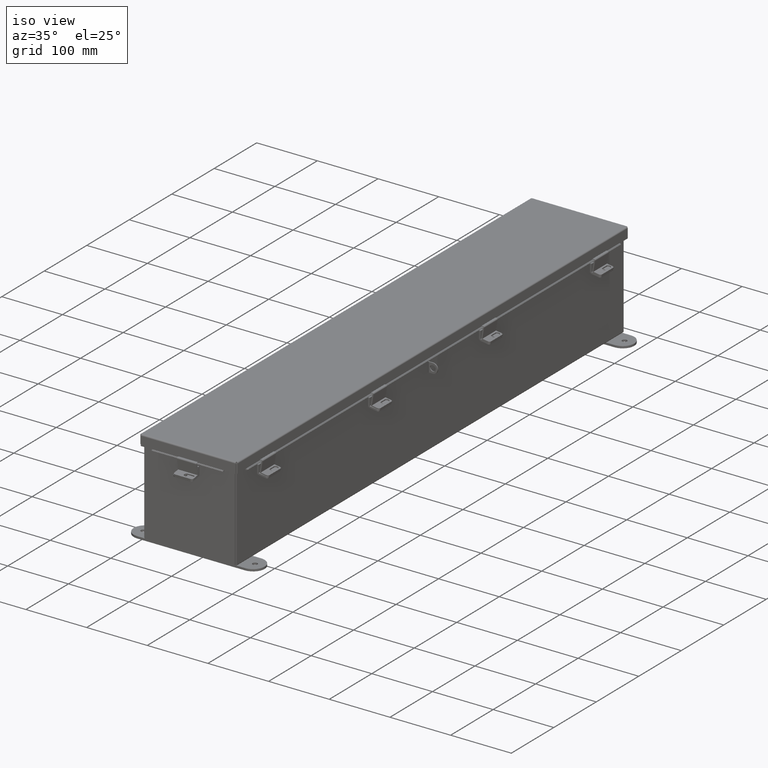
[diagram: clean part render]
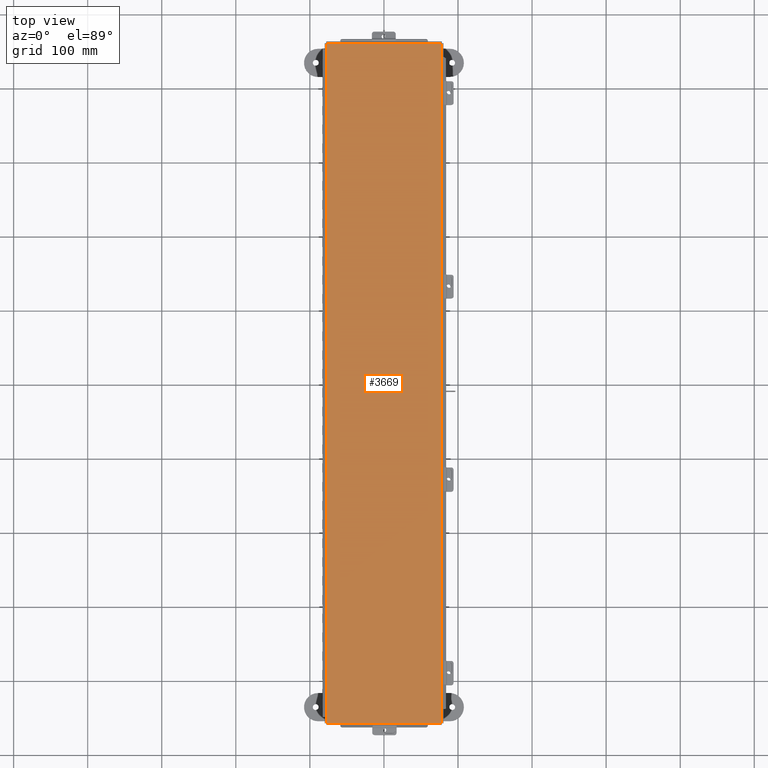
[diagram: tour spotlight — one face highlighted and labeled with its STEP entity id]
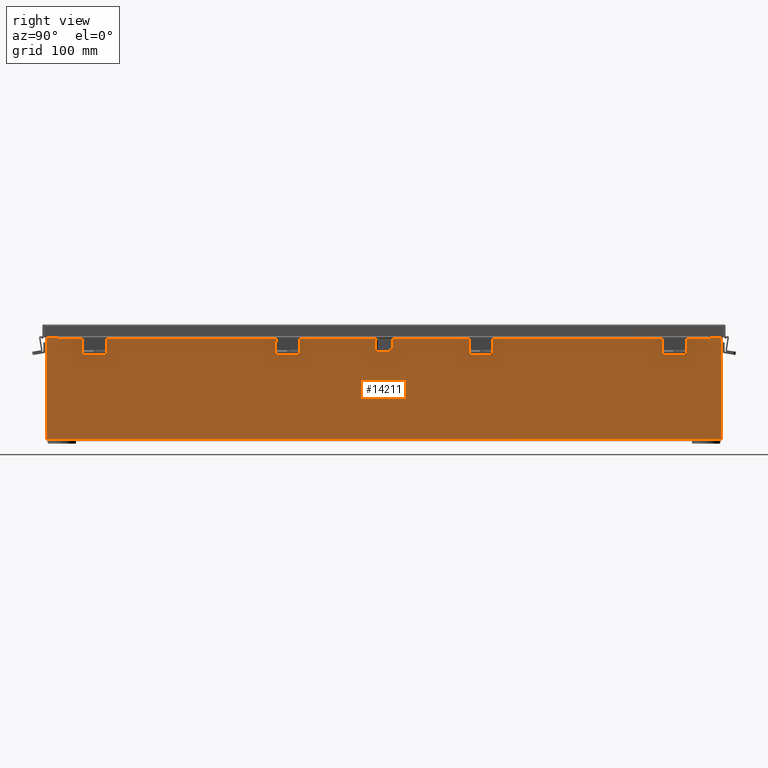
[diagram: tour spotlight — one face highlighted and labeled with its STEP entity id]
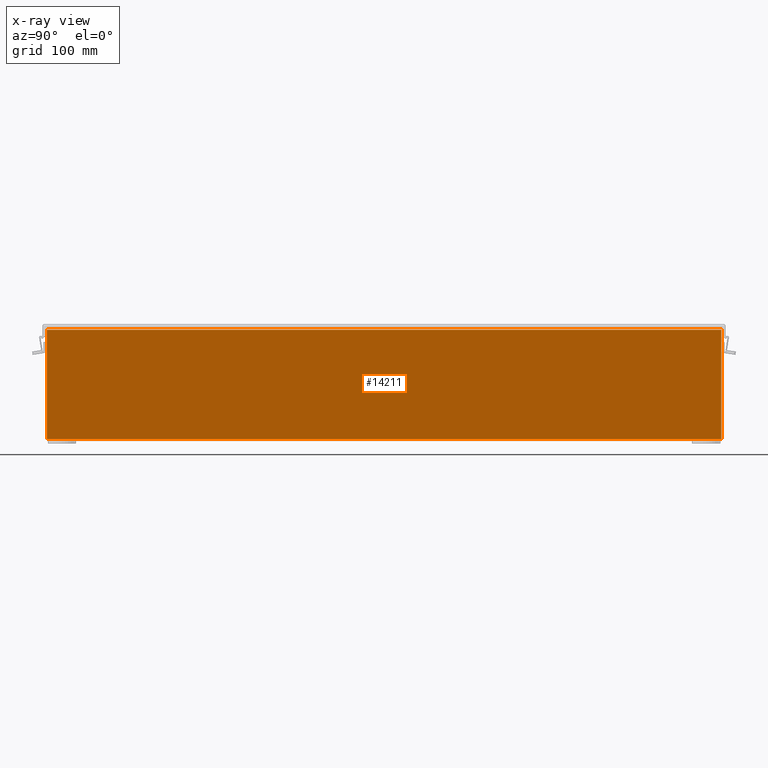
[diagram: x-ray of the same camera — body ghosted, this tour face saturated]
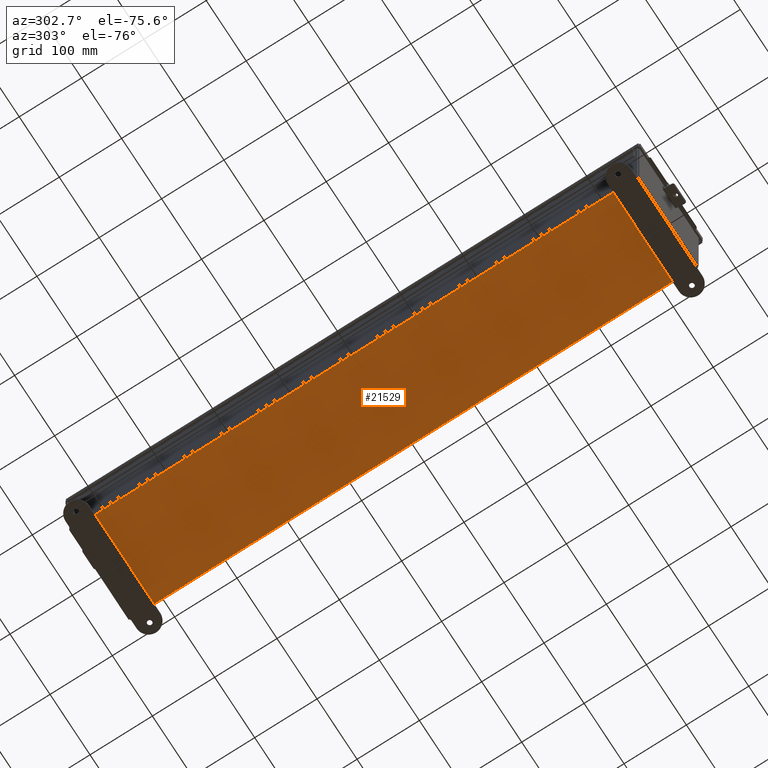
[diagram: tour spotlight — one face highlighted and labeled with its STEP entity id]
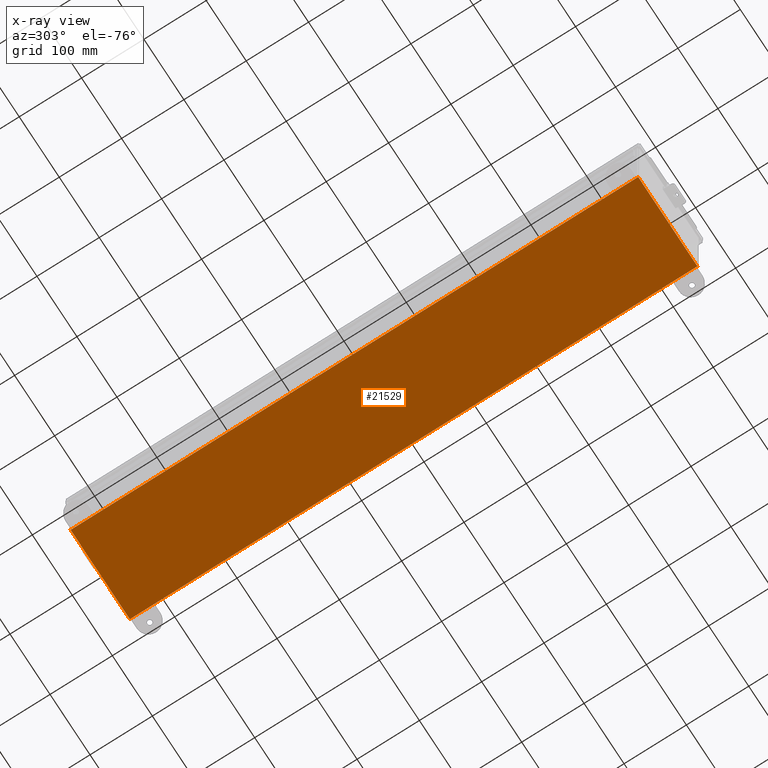
[diagram: x-ray of the same camera — body ghosted, this tour face saturated]
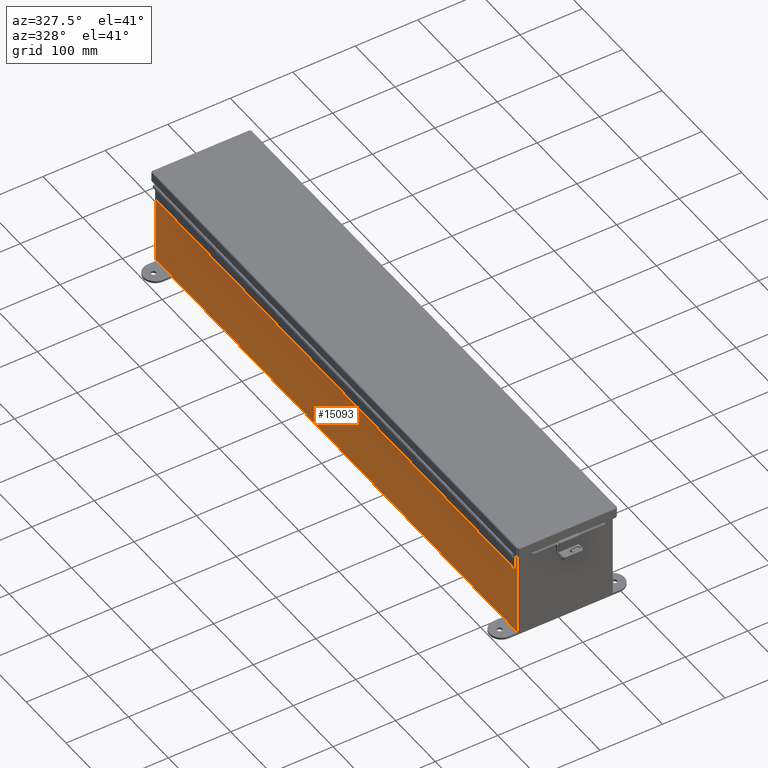
[diagram: tour spotlight — one face highlighted and labeled with its STEP entity id]
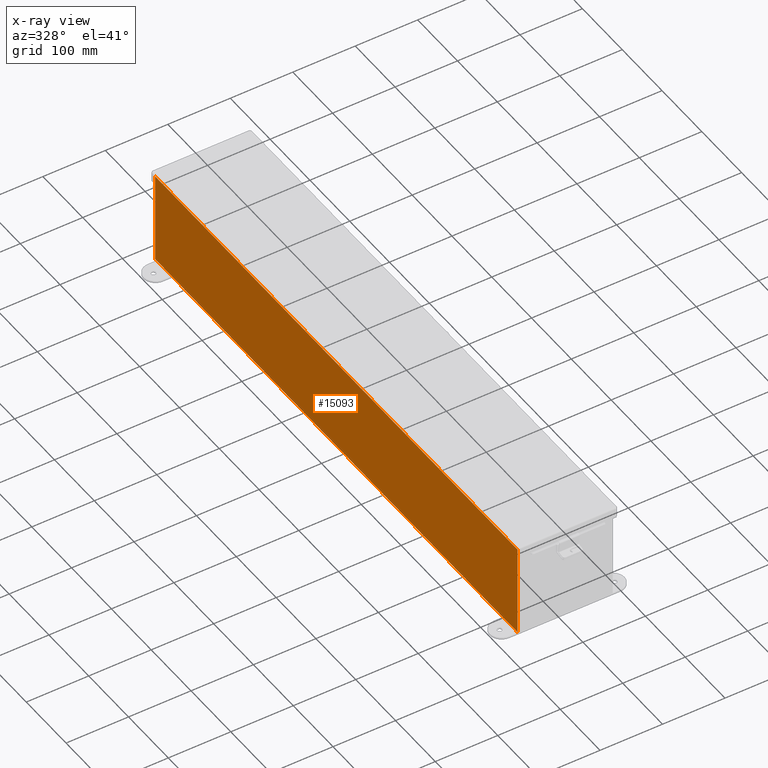
[diagram: x-ray of the same camera — body ghosted, this tour face saturated]
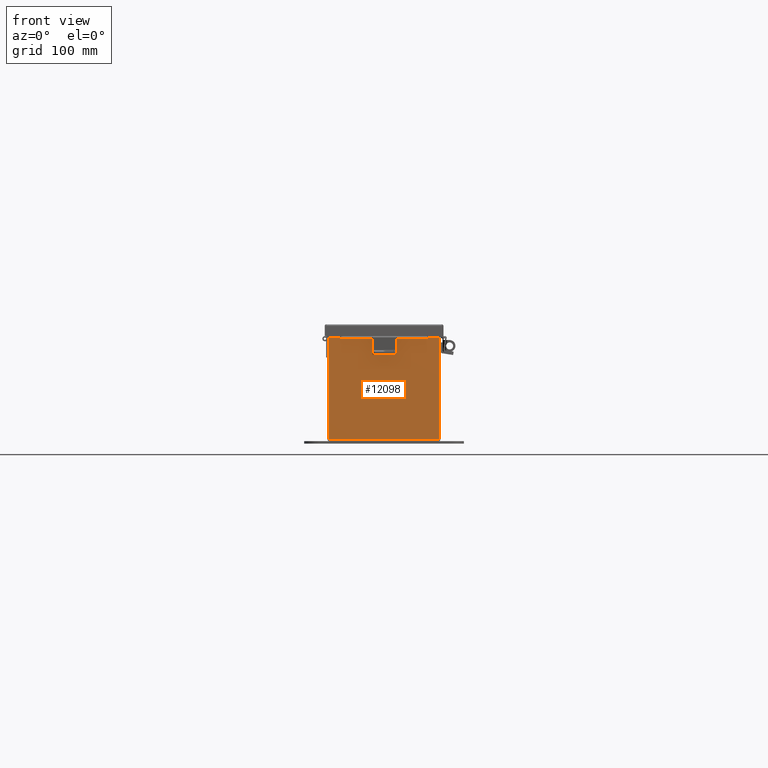
[diagram: tour spotlight — one face highlighted and labeled with its STEP entity id]
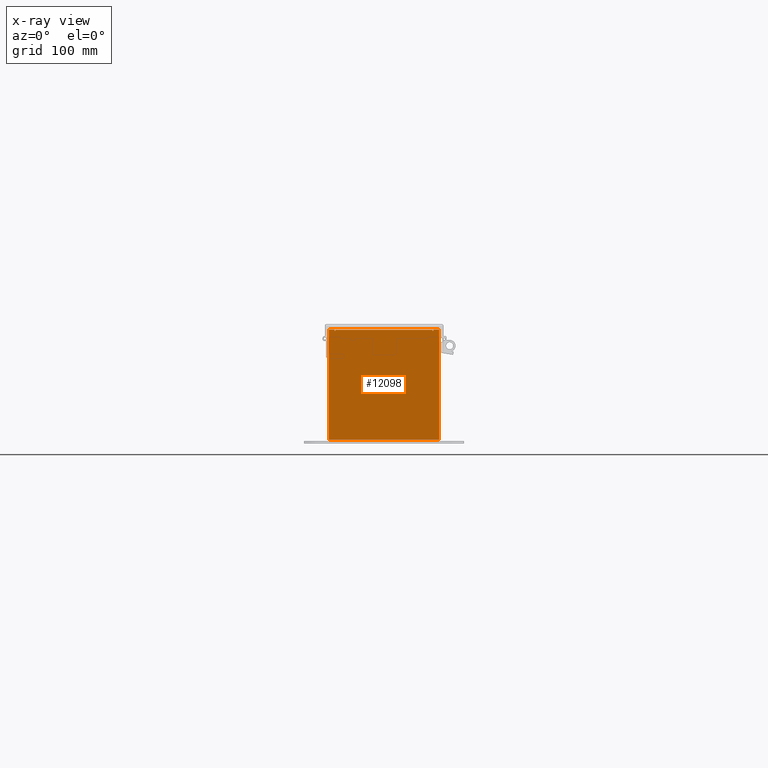
[diagram: x-ray of the same camera — body ghosted, this tour face saturated]
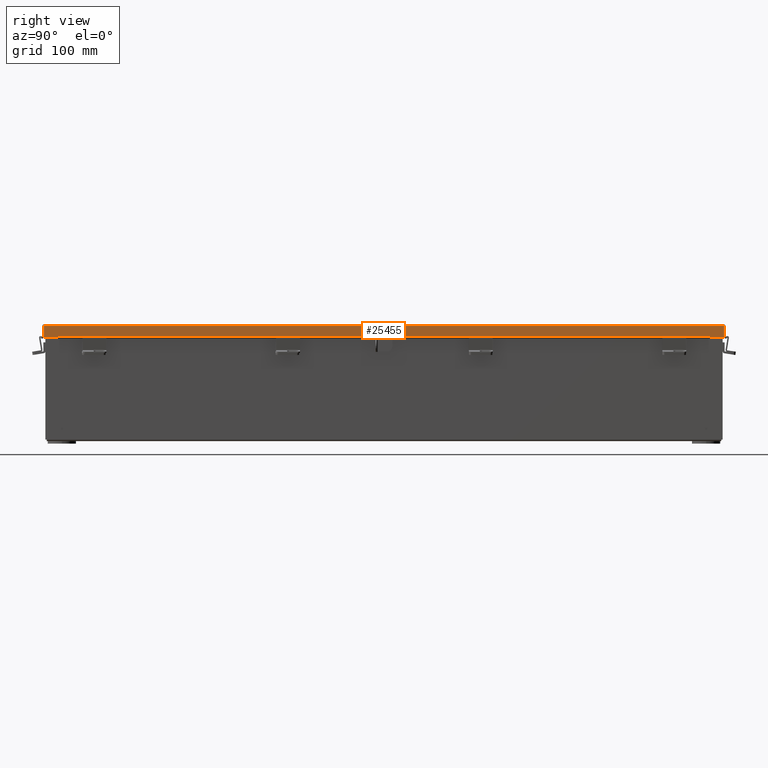
[diagram: tour spotlight — one face highlighted and labeled with its STEP entity id]
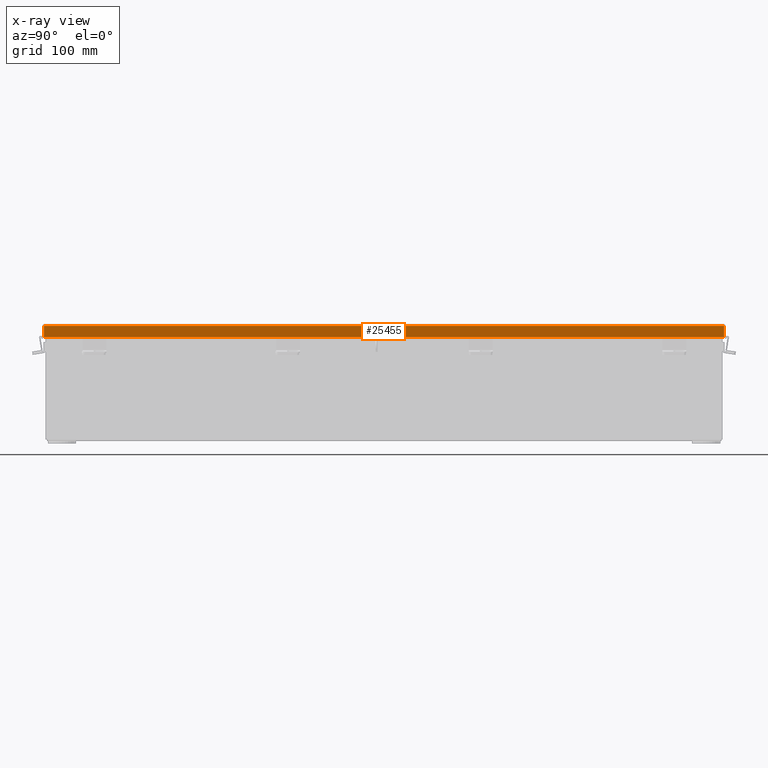
[diagram: x-ray of the same camera — body ghosted, this tour face saturated]
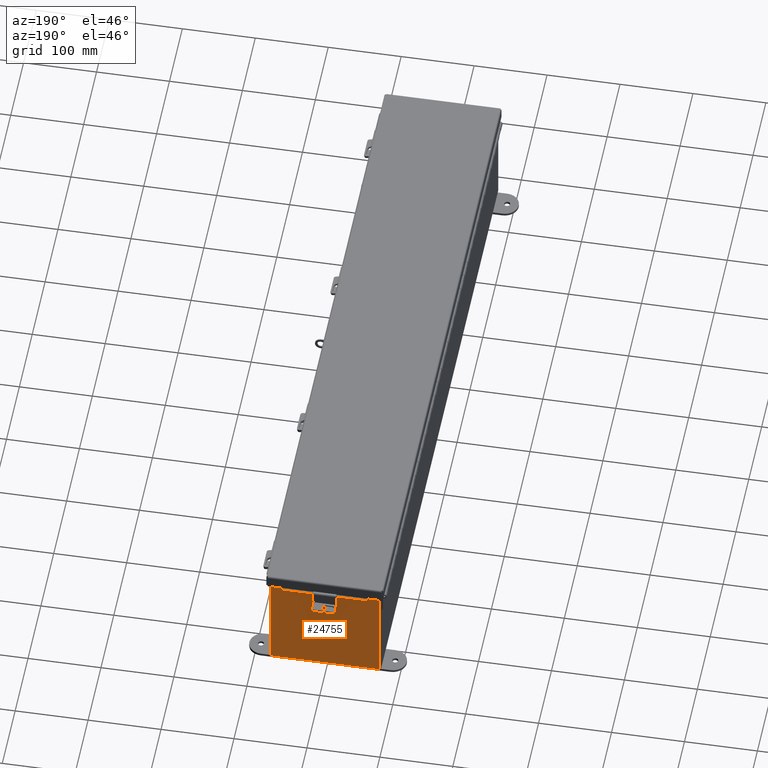
[diagram: tour spotlight — one face highlighted and labeled with its STEP entity id]
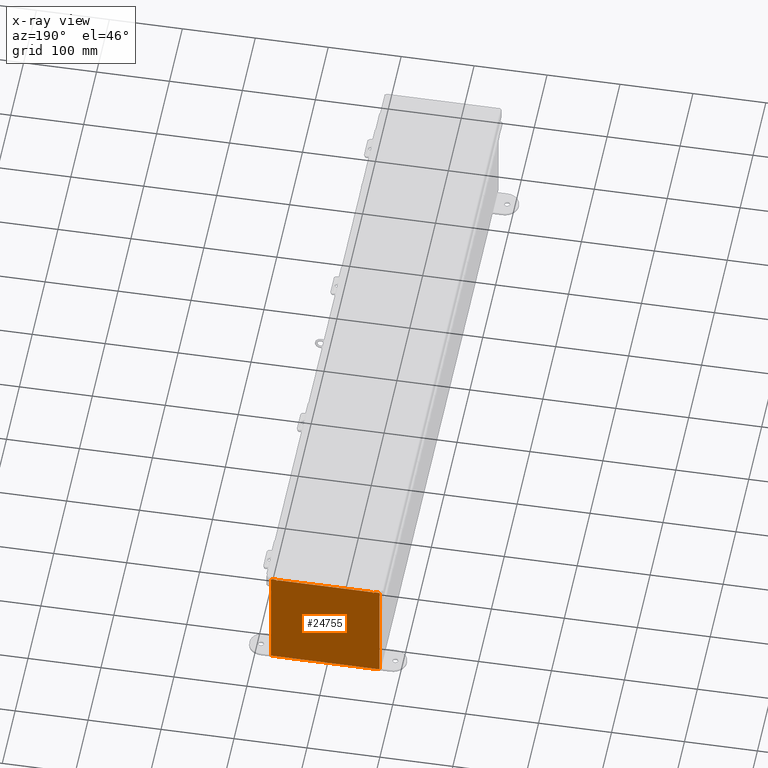
[diagram: x-ray of the same camera — body ghosted, this tour face saturated]
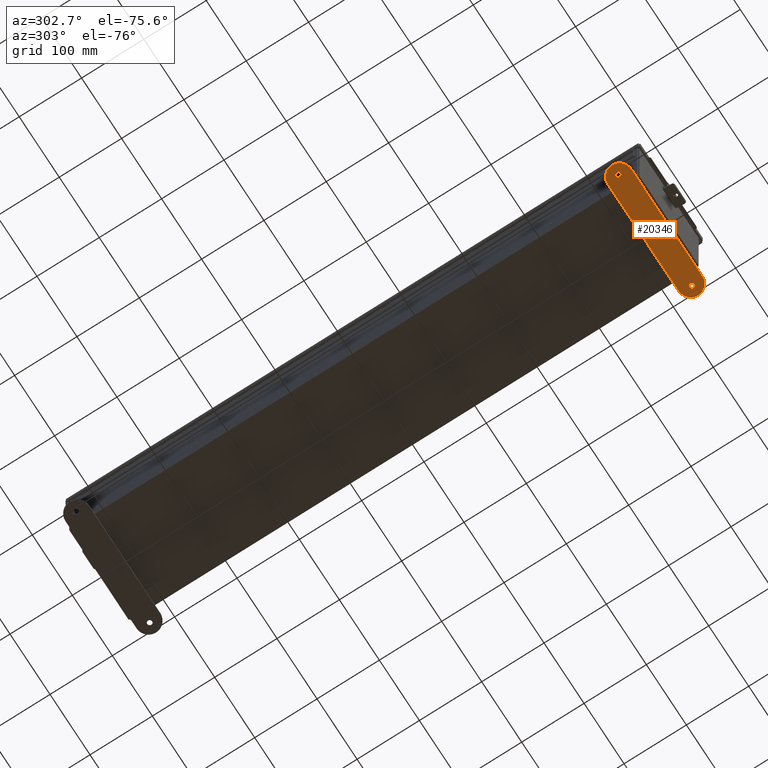
[diagram: tour spotlight — one face highlighted and labeled with its STEP entity id]
A machine part: a face-by-face anatomy tour. The part has 1160 B-rep faces; the first image is the clean iso view, then the 8 largest visible faces are spotlighted one at a time (largest first), each with its STEP entity span.

Face 1 — top view, entity #3669. In plain terms, the highlighted planar face has unit normal (0, 0, 1).
Definition (entity closure, byte-faithful):
#2366 = ORIENTED_EDGE ( 'NONE', *, *, #19344, .T. ) ;
#2527 = VECTOR ( 'NONE', #28118, 39.37007874015748100 ) ;
#3322 = LINE ( 'NONE', #20667, #8690 ) ;
#3569 = CARTESIAN_POINT ( 'NONE',  ( 3.074478932188144900, -18.06855000000000200, -0.07470000000000015500 ) ) ;
#3669 = ADVANCED_FACE ( 'NONE', ( #28480 ), #21963, .T. ) ;
#4637 = DIRECTION ( 'NONE',  ( 1.000000000000000000, -6.825164035528992100E-030, 1.577721810442017300E-030 ) ) ;
#4644 = VERTEX_POINT ( 'NONE', #5167 ) ;
#5167 = CARTESIAN_POINT ( 'NONE',  ( -3.068550000000009400, 18.06854999999999800, -0.07470000000000015500 ) ) ;
#5169 = AXIS2_PLACEMENT_3D ( 'NONE', #6036, #8349, #24388 ) ;
#6036 = CARTESIAN_POINT ( 'NONE',  ( 0.0000000000000000000, 0.0000000000000000000, -0.07470000000000015500 ) ) ;
#7136 = ORIENTED_EDGE ( 'NONE', *, *, #21408, .T. ) ;
#7326 = EDGE_LOOP ( 'NONE', ( #2366, #20398, #26008, #7136 ) ) ;
#8349 = DIRECTION ( 'NONE',  ( 1.577721810442017300E-030, -5.312485158597730400E-030, -1.000000000000000000 ) ) ;
#8690 = VECTOR ( 'NONE', #4637, 39.37007874015748100 ) ;
#10562 = EDGE_CURVE ( 'NONE', #24762, #18772, #21824, .T. ) ;
#12092 = VECTOR ( 'NONE', #16949, 39.37007874015748100 ) ;
#12957 = CARTESIAN_POINT ( 'NONE',  ( 3.068550000000010800, -18.06855000000000200, -0.07470000000000015500 ) ) ;
#14642 = CARTESIAN_POINT ( 'NONE',  ( 3.068550000000009900, 18.07447893218813600, -0.07470000000000015500 ) ) ;
#14709 = LINE ( 'NONE', #18902, #2527 ) ;
#16498 = CARTESIAN_POINT ( 'NONE',  ( 3.068550000000009900, 18.06855000000000200, -0.07470000000000015500 ) ) ;
#16949 = DIRECTION ( 'NONE',  ( 6.825164035529006100E-030, -1.000000000000000000, -5.324811110241829700E-030 ) ) ;
#18772 = VERTEX_POINT ( 'NONE', #27836 ) ;
#18902 = CARTESIAN_POINT ( 'NONE',  ( -3.068550000000009000, -18.07447893218813600, -0.07469999999999907300 ) ) ;
#18955 = LINE ( 'NONE', #14642, #12092 ) ;
#19344 = EDGE_CURVE ( 'NONE', #4644, #22799, #3322, .T. ) ;
#19603 = DIRECTION ( 'NONE',  ( -1.000000000000000000, 6.825164035528992100E-030, -1.577721810442017300E-030 ) ) ;
#20398 = ORIENTED_EDGE ( 'NONE', *, *, #26678, .T. ) ;
#20667 = CARTESIAN_POINT ( 'NONE',  ( -3.074478932188143600, 18.06854999999999800, -0.07470000000000015500 ) ) ;
#21408 = EDGE_CURVE ( 'NONE', #18772, #4644, #14709, .T. ) ;
#21824 = LINE ( 'NONE', #3569, #22547 ) ;
#21963 = PLANE ( 'NONE',  #5169 ) ;
#22547 = VECTOR ( 'NONE', #19603, 39.37007874015748100 ) ;
#22799 = VERTEX_POINT ( 'NONE', #16498 ) ;
#24388 = DIRECTION ( 'NONE',  ( -1.000000000000000000, 6.825164035528992100E-030, -1.577721810442017300E-030 ) ) ;
#24762 = VERTEX_POINT ( 'NONE', #12957 ) ;
#26008 = ORIENTED_EDGE ( 'NONE', *, *, #10562, .T. ) ;
#26678 = EDGE_CURVE ( 'NONE', #22799, #24762, #18955, .T. ) ;
#27836 = CARTESIAN_POINT ( 'NONE',  ( -3.068550000000009000, -18.06855000000000200, -0.07469999999999907300 ) ) ;
#28118 = DIRECTION ( 'NONE',  ( -6.825164035529006100E-030, 1.000000000000000000, 5.324811110241829700E-030 ) ) ;
#28480 = FACE_OUTER_BOUND ( 'NONE', #7326, .T. ) ;

Face 2 — right view, entity #14211. An x-ray twin of the same camera follows (body ghosted, this face saturated) — the face is partly hidden behind the body. In plain terms, the highlighted planar face has unit normal (-1, 0, 0).
Definition (entity closure, byte-faithful):
#254 = ORIENTED_EDGE ( 'NONE', *, *, #28491, .T. ) ;
#443 = VERTEX_POINT ( 'NONE', #20395 ) ;
#456 = CARTESIAN_POINT ( 'NONE',  ( 3.000000000000020900, 17.92530000000000000, 5.837599999999999200 ) ) ;
#1532 = DIRECTION ( 'NONE',  ( -1.000000000000000000, 0.0000000000000000000, 3.455316574900958600E-015 ) ) ;
#1927 = VERTEX_POINT ( 'NONE', #13043 ) ;
#1987 = EDGE_LOOP ( 'NONE', ( #254, #8208, #24508, #25262 ) ) ;
#2203 = AXIS2_PLACEMENT_3D ( 'NONE', #15259, #1532, #17583 ) ;
#2762 = DIRECTION ( 'NONE',  ( -0.0000000000000000000, -1.000000000000000000, -0.0000000000000000000 ) ) ;
#3665 = LINE ( 'NONE', #11642, #15115 ) ;
#6598 = VECTOR ( 'NONE', #2762, 39.37007874015748100 ) ;
#7197 = FACE_OUTER_BOUND ( 'NONE', #1987, .T. ) ;
#7586 = EDGE_CURVE ( 'NONE', #18035, #443, #15141, .T. ) ;
#8065 = EDGE_CURVE ( 'NONE', #18035, #27131, #3665, .T. ) ;
#8208 = ORIENTED_EDGE ( 'NONE', *, *, #21619, .T. ) ;
#8244 = VECTOR ( 'NONE', #17554, 39.37007874015748100 ) ;
#10633 = PLANE ( 'NONE',  #2203 ) ;
#11642 = CARTESIAN_POINT ( 'NONE',  ( 3.000000000000000900, 17.92530000000000000, -1.062859610035002400E-014 ) ) ;
#13043 = CARTESIAN_POINT ( 'NONE',  ( 3.000000000000020900, -17.92530000000000000, 5.837599999999999200 ) ) ;
#14211 = ADVANCED_FACE ( 'NONE', ( #7197 ), #10633, .F. ) ;
#14338 = LINE ( 'NONE', #28979, #8244 ) ;
#15115 = VECTOR ( 'NONE', #25410, 39.37007874015748100 ) ;
#15141 = LINE ( 'NONE', #16906, #19818 ) ;
#15259 = CARTESIAN_POINT ( 'NONE',  ( 3.000000000000000900, 0.0000000000000000000, -1.062859610035002400E-014 ) ) ;
#16638 = CARTESIAN_POINT ( 'NONE',  ( 3.000000000000020900, 17.92529999999998900, 5.837599999999999200 ) ) ;
#16906 = CARTESIAN_POINT ( 'NONE',  ( 3.000000000000000900, -17.92530000000000000, 0.01299999999999984300 ) ) ;
#17554 = DIRECTION ( 'NONE',  ( -3.455316574900958600E-015, 0.0000000000000000000, -1.000000000000000000 ) ) ;
#17583 = DIRECTION ( 'NONE',  ( 3.455316574900958600E-015, 0.0000000000000000000, 1.000000000000000000 ) ) ;
#17717 = CARTESIAN_POINT ( 'NONE',  ( 3.000000000000000900, 17.92530000000000000, 0.01300000000000202700 ) ) ;
#18035 = VERTEX_POINT ( 'NONE', #17717 ) ;
#18842 = LINE ( 'NONE', #456, #6598 ) ;
#19818 = VECTOR ( 'NONE', #26028, 39.37007874015748100 ) ;
#20395 = CARTESIAN_POINT ( 'NONE',  ( 3.000000000000000900, -17.92530000000000000, 0.01299999999999946700 ) ) ;
#21619 = EDGE_CURVE ( 'NONE', #1927, #443, #14338, .T. ) ;
#24508 = ORIENTED_EDGE ( 'NONE', *, *, #7586, .F. ) ;
#25262 = ORIENTED_EDGE ( 'NONE', *, *, #8065, .T. ) ;
#25410 = DIRECTION ( 'NONE',  ( 3.455316574900958600E-015, 0.0000000000000000000, 1.000000000000000000 ) ) ;
#26028 = DIRECTION ( 'NONE',  ( -2.106385868603161400E-031, -1.000000000000000000, -6.096072018129156600E-017 ) ) ;
#27131 = VERTEX_POINT ( 'NONE', #16638 ) ;
#28491 = EDGE_CURVE ( 'NONE', #27131, #1927, #18842, .T. ) ;
#28979 = CARTESIAN_POINT ( 'NONE',  ( 3.000000000000000900, -17.92530000000000000, -1.062859610035002400E-014 ) ) ;

Face 3 — auxiliary view, entity #21529. An x-ray twin of the same camera follows (body ghosted, this face saturated) — the face is partly hidden behind the body. In plain terms, the highlighted planar face has unit normal (0, 0, -1).
Definition (entity closure, byte-faithful):
#395 = LINE ( 'NONE', #26907, #11842 ) ;
#696 = VERTEX_POINT ( 'NONE', #28120 ) ;
#918 = DIRECTION ( 'NONE',  ( -1.000000000000000000, -0.0000000000000000000, -0.0000000000000000000 ) ) ;
#973 = CARTESIAN_POINT ( 'NONE',  ( -2.999999999999999600, -17.92530000000000000, -0.07470000000000000300 ) ) ;
#1739 = DIRECTION ( 'NONE',  ( -0.0000000000000000000, 1.000000000000000000, 8.208677865577646300E-017 ) ) ;
#2367 = VECTOR ( 'NONE', #23330, 39.37007874015748100 ) ;
#2697 = CARTESIAN_POINT ( 'NONE',  ( 2.912300000000000600, 17.92530000000000000, -0.07469999999999738000 ) ) ;
#4216 = EDGE_LOOP ( 'NONE', ( #16329, #23415, #25341, #21801 ) ) ;
#4229 = LINE ( 'NONE', #973, #21772 ) ;
#5052 = CARTESIAN_POINT ( 'NONE',  ( 2.912300000000000600, -17.92530000000000000, -0.07470000000000000300 ) ) ;
#5235 = AXIS2_PLACEMENT_3D ( 'NONE', #26298, #12524, #28577 ) ;
#5521 = CARTESIAN_POINT ( 'NONE',  ( -2.999999999999999600, 17.92530000000000000, -0.07470000000000000300 ) ) ;
#5669 = DIRECTION ( 'NONE',  ( 1.000000000000000000, 0.0000000000000000000, 0.0000000000000000000 ) ) ;
#5741 = EDGE_CURVE ( 'NONE', #696, #16265, #8457, .T. ) ;
#5996 = VERTEX_POINT ( 'NONE', #19851 ) ;
#5998 = VECTOR ( 'NONE', #918, 39.37007874015748100 ) ;
#7928 = PLANE ( 'NONE',  #5235 ) ;
#8457 = LINE ( 'NONE', #2697, #2367 ) ;
#11522 = EDGE_CURVE ( 'NONE', #26038, #16265, #4229, .T. ) ;
#11842 = VECTOR ( 'NONE', #1739, 39.37007874015748100 ) ;
#12524 = DIRECTION ( 'NONE',  ( 0.0000000000000000000, 0.0000000000000000000, -1.000000000000000000 ) ) ;
#14265 = EDGE_CURVE ( 'NONE', #26038, #5996, #395, .T. ) ;
#16265 = VERTEX_POINT ( 'NONE', #5052 ) ;
#16329 = ORIENTED_EDGE ( 'NONE', *, *, #26695, .F. ) ;
#19851 = CARTESIAN_POINT ( 'NONE',  ( -2.912299999999999200, 17.92530000000000000, -0.07470000000000000300 ) ) ;
#21529 = ADVANCED_FACE ( 'NONE', ( #29421 ), #7928, .T. ) ;
#21772 = VECTOR ( 'NONE', #5669, 39.37007874015748100 ) ;
#21801 = ORIENTED_EDGE ( 'NONE', *, *, #14265, .T. ) ;
#23330 = DIRECTION ( 'NONE',  ( -0.0000000000000000000, -1.000000000000000000, -8.208677865577646300E-017 ) ) ;
#23415 = ORIENTED_EDGE ( 'NONE', *, *, #5741, .T. ) ;
#25341 = ORIENTED_EDGE ( 'NONE', *, *, #11522, .F. ) ;
#26025 = CARTESIAN_POINT ( 'NONE',  ( -2.912299999999999200, -17.92530000000000000, -0.07470000000000223700 ) ) ;
#26038 = VERTEX_POINT ( 'NONE', #26025 ) ;
#26298 = CARTESIAN_POINT ( 'NONE',  ( 0.0000000000000000000, 0.0000000000000000000, -0.07470000000000000300 ) ) ;
#26695 = EDGE_CURVE ( 'NONE', #696, #5996, #29698, .T. ) ;
#26907 = CARTESIAN_POINT ( 'NONE',  ( -2.912299999999999200, -17.92530000000000000, -0.07470000000000223700 ) ) ;
#28120 = CARTESIAN_POINT ( 'NONE',  ( 2.912300000000000600, 17.92530000000000000, -0.07469999999999738000 ) ) ;
#28577 = DIRECTION ( 'NONE',  ( -1.000000000000000000, 0.0000000000000000000, -0.0000000000000000000 ) ) ;
#29421 = FACE_OUTER_BOUND ( 'NONE', #4216, .T. ) ;
#29698 = LINE ( 'NONE', #5521, #5998 ) ;

Face 4 — auxiliary view, entity #15093. An x-ray twin of the same camera follows (body ghosted, this face saturated) — the face is partly hidden behind the body. In plain terms, the highlighted planar face has unit normal (1, 0, 0).
Definition (entity closure, byte-faithful):
#1353 = DIRECTION ( 'NONE',  ( -3.455316574900958600E-015, 3.735477378271307500E-016, 1.000000000000000000 ) ) ;
#1767 = CARTESIAN_POINT ( 'NONE',  ( -2.999999999999999600, 17.92530000000000000, 0.01300000000000050800 ) ) ;
#3103 = ORIENTED_EDGE ( 'NONE', *, *, #7753, .F. ) ;
#3762 = DIRECTION ( 'NONE',  ( -1.579789401452370800E-031, 1.000000000000000000, 4.572054013596867700E-017 ) ) ;
#4575 = EDGE_LOOP ( 'NONE', ( #25613, #16919, #3103, #12794 ) ) ;
#4769 = LINE ( 'NONE', #28921, #10096 ) ;
#5120 = CARTESIAN_POINT ( 'NONE',  ( -2.999999999999999600, 0.0000000000000000000, -1.062859610035002400E-014 ) ) ;
#5649 = LINE ( 'NONE', #25504, #28601 ) ;
#7753 = EDGE_CURVE ( 'NONE', #15894, #22355, #4769, .T. ) ;
#7836 = VECTOR ( 'NONE', #10861, 39.37007874015748100 ) ;
#8394 = VECTOR ( 'NONE', #1353, 39.37007874015748100 ) ;
#9687 = AXIS2_PLACEMENT_3D ( 'NONE', #5120, #28092, #14325 ) ;
#10096 = VECTOR ( 'NONE', #3762, 39.37007874015748100 ) ;
#10861 = DIRECTION ( 'NONE',  ( 3.455316574900958600E-015, 0.0000000000000000000, -1.000000000000000000 ) ) ;
#12009 = PLANE ( 'NONE',  #9687 ) ;
#12794 = ORIENTED_EDGE ( 'NONE', *, *, #28631, .T. ) ;
#13926 = LINE ( 'NONE', #17808, #7836 ) ;
#14325 = DIRECTION ( 'NONE',  ( 3.455316574900958600E-015, 0.0000000000000000000, -1.000000000000000000 ) ) ;
#15093 = ADVANCED_FACE ( 'NONE', ( #15376 ), #12009, .F. ) ;
#15339 = VERTEX_POINT ( 'NONE', #17522 ) ;
#15376 = FACE_OUTER_BOUND ( 'NONE', #4575, .T. ) ;
#15894 = VERTEX_POINT ( 'NONE', #17394 ) ;
#16241 = EDGE_CURVE ( 'NONE', #15339, #28936, #5649, .T. ) ;
#16919 = ORIENTED_EDGE ( 'NONE', *, *, #22359, .T. ) ;
#17394 = CARTESIAN_POINT ( 'NONE',  ( -2.999999999999999600, -17.92530000000000000, 0.01299999999999820400 ) ) ;
#17396 = CARTESIAN_POINT ( 'NONE',  ( -2.999999999999999600, -17.92530000000000000, -3.927031490892378400E-015 ) ) ;
#17522 = CARTESIAN_POINT ( 'NONE',  ( -3.000000000000020000, -17.92529999999998900, 5.837599999999999200 ) ) ;
#17808 = CARTESIAN_POINT ( 'NONE',  ( -2.999999999999999600, 17.92530000000000000, -1.062859610035002400E-014 ) ) ;
#21313 = LINE ( 'NONE', #17396, #8394 ) ;
#22355 = VERTEX_POINT ( 'NONE', #1767 ) ;
#22359 = EDGE_CURVE ( 'NONE', #28936, #22355, #13926, .T. ) ;
#25504 = CARTESIAN_POINT ( 'NONE',  ( -3.000000000000020000, -17.92530000000000000, 5.837599999999999200 ) ) ;
#25613 = ORIENTED_EDGE ( 'NONE', *, *, #16241, .T. ) ;
#27617 = CARTESIAN_POINT ( 'NONE',  ( -3.000000000000020000, 17.92530000000000000, 5.837599999999999200 ) ) ;
#27830 = DIRECTION ( 'NONE',  ( 0.0000000000000000000, 1.000000000000000000, 0.0000000000000000000 ) ) ;
#28092 = DIRECTION ( 'NONE',  ( 1.000000000000000000, 0.0000000000000000000, 3.455316574900958600E-015 ) ) ;
#28601 = VECTOR ( 'NONE', #27830, 39.37007874015748100 ) ;
#28631 = EDGE_CURVE ( 'NONE', #15894, #15339, #21313, .T. ) ;
#28921 = CARTESIAN_POINT ( 'NONE',  ( -2.999999999999999600, 17.92530000000000000, 0.01299999999999984300 ) ) ;
#28936 = VERTEX_POINT ( 'NONE', #27617 ) ;

Face 5 — front view, entity #12098. An x-ray twin of the same camera follows (body ghosted, this face saturated) — the face is partly hidden behind the body. In plain terms, the highlighted planar face has unit normal (-0, 1, -0).
Definition (entity closure, byte-faithful):
#248 = CARTESIAN_POINT ( 'NONE',  ( 2.925300000000001800, 0.0000000000000000000, 2.925299999999999600 ) ) ;
#373 = DIRECTION ( 'NONE',  ( 0.0000000000000000000, 0.0000000000000000000, -1.000000000000000000 ) ) ;
#617 = VERTEX_POINT ( 'NONE', #248 ) ;
#627 = DIRECTION ( 'NONE',  ( -1.085143195099989400E-014, 0.0000000000000000000, -1.000000000000000000 ) ) ;
#1671 = ORIENTED_EDGE ( 'NONE', *, *, #5918, .T. ) ;
#1703 = LINE ( 'NONE', #22755, #8520 ) ;
#3045 = EDGE_CURVE ( 'NONE', #19782, #17203, #20633, .T. ) ;
#3237 = CARTESIAN_POINT ( 'NONE',  ( 2.619650000000001800, 0.0000000000000000000, 2.925299999999999600 ) ) ;
#3549 = CARTESIAN_POINT ( 'NONE',  ( 0.0000000000000000000, 0.0000000000000000000, 0.0000000000000000000 ) ) ;
#3797 = CARTESIAN_POINT ( 'NONE',  ( -2.582299999999998300, 2.185478394931410600E-015, 2.912299999999999200 ) ) ;
#4054 = EDGE_CURVE ( 'NONE', #17138, #26836, #7649, .T. ) ;
#4829 = AXIS2_PLACEMENT_3D ( 'NONE', #3549, #26509, #12736 ) ;
#4921 = DIRECTION ( 'NONE',  ( 0.0000000000000000000, 0.0000000000000000000, 1.000000000000000000 ) ) ;
#5019 = CARTESIAN_POINT ( 'NONE',  ( -2.619649999999998300, 0.0000000000000000000, 0.0000000000000000000 ) ) ;
#5138 = CARTESIAN_POINT ( 'NONE',  ( 2.619649999999970700, 0.0000000000000000000, -2.404026234424551500E-014 ) ) ;
#5218 = CARTESIAN_POINT ( 'NONE',  ( -2.619649999999998300, 0.0000000000000000000, 2.874949999999998300 ) ) ;
#5678 = DIRECTION ( 'NONE',  ( 1.000000000000000000, 5.526334185345597900E-031, 0.0000000000000000000 ) ) ;
#5738 = VERTEX_POINT ( 'NONE', #16419 ) ;
#5918 = EDGE_CURVE ( 'NONE', #17138, #617, #21710, .T. ) ;
#5941 = VECTOR ( 'NONE', #6767, 39.37007874015748100 ) ;
#6222 = ORIENTED_EDGE ( 'NONE', *, *, #16751, .T. ) ;
#6234 = ORIENTED_EDGE ( 'NONE', *, *, #22959, .T. ) ;
#6254 = CARTESIAN_POINT ( 'NONE',  ( 2.582300000000001400, 0.0000000000000000000, 2.874949999999998300 ) ) ;
#6263 = LINE ( 'NONE', #15790, #17741 ) ;
#6714 = DIRECTION ( 'NONE',  ( 0.0000000000000000000, 0.0000000000000000000, -1.000000000000000000 ) ) ;
#6753 = ORIENTED_EDGE ( 'NONE', *, *, #25494, .F. ) ;
#6767 = DIRECTION ( 'NONE',  ( 0.0000000000000000000, 0.0000000000000000000, 1.000000000000000000 ) ) ;
#7649 = LINE ( 'NONE', #5138, #23784 ) ;
#8096 = CARTESIAN_POINT ( 'NONE',  ( -2.600974999999998300, 0.0000000000000000000, 2.874949999999998300 ) ) ;
#8520 = VECTOR ( 'NONE', #6714, 39.37007874015748100 ) ;
#8969 = ORIENTED_EDGE ( 'NONE', *, *, #11362, .T. ) ;
#10348 = CIRCLE ( 'NONE', #11483, 0.01867500000000003900 ) ;
#10364 = DIRECTION ( 'NONE',  ( 0.0000000000000000000, 0.0000000000000000000, -1.000000000000000000 ) ) ;
#10486 = AXIS2_PLACEMENT_3D ( 'NONE', #27863, #14093, #373 ) ;
#10973 = LINE ( 'NONE', #15831, #16375 ) ;
#11362 = EDGE_CURVE ( 'NONE', #617, #20940, #1703, .T. ) ;
#11483 = AXIS2_PLACEMENT_3D ( 'NONE', #8096, #24130, #10364 ) ;
#11658 = VERTEX_POINT ( 'NONE', #6254 ) ;
#11682 = VERTEX_POINT ( 'NONE', #26920 ) ;
#12098 = ADVANCED_FACE ( 'NONE', ( #26002 ), #12635, .F. ) ;
#12556 = DIRECTION ( 'NONE',  ( 0.0000000000000000000, 0.0000000000000000000, 1.000000000000000000 ) ) ;
#12635 = PLANE ( 'NONE',  #4829 ) ;
#12736 = DIRECTION ( 'NONE',  ( 0.0000000000000000000, 0.0000000000000000000, -1.000000000000000000 ) ) ;
#13811 = ORIENTED_EDGE ( 'NONE', *, *, #28315, .T. ) ;
#14093 = DIRECTION ( 'NONE',  ( 5.526334185345597900E-031, 1.000000000000000000, -0.0000000000000000000 ) ) ;
#14534 = VECTOR ( 'NONE', #22841, 39.37007874015748100 ) ;
#14772 = CARTESIAN_POINT ( 'NONE',  ( -2.925300000000003600, 0.0000000000000000000, -2.925299999999995600 ) ) ;
#14847 = DIRECTION ( 'NONE',  ( -1.000000000000000000, -5.526334185345597900E-031, 0.0000000000000000000 ) ) ;
#14988 = EDGE_LOOP ( 'NONE', ( #22463, #6753, #17687, #6222, #27350, #24990, #23579, #1671, #8969, #18771, #6234, #13811 ) ) ;
#15065 = EDGE_CURVE ( 'NONE', #22007, #20572, #23654, .T. ) ;
#15790 = CARTESIAN_POINT ( 'NONE',  ( -2.925299999999998200, 0.0000000000000000000, 2.925299999999999600 ) ) ;
#15831 = CARTESIAN_POINT ( 'NONE',  ( -2.582299999999998300, 2.185478394931410600E-015, 2.912299999999999200 ) ) ;
#16007 = CARTESIAN_POINT ( 'NONE',  ( 2.582300000000001400, 0.0000000000000000000, 0.0000000000000000000 ) ) ;
#16115 = VECTOR ( 'NONE', #4921, 39.37007874015748100 ) ;
#16375 = VECTOR ( 'NONE', #20446, 39.37007874015748100 ) ;
#16419 = CARTESIAN_POINT ( 'NONE',  ( -2.925299999999998200, 0.0000000000000000000, 2.925299999999999600 ) ) ;
#16751 = EDGE_CURVE ( 'NONE', #19782, #11682, #10973, .T. ) ;
#17138 = VERTEX_POINT ( 'NONE', #3237 ) ;
#17180 = EDGE_CURVE ( 'NONE', #20940, #26102, #23884, .T. ) ;
#17203 = VERTEX_POINT ( 'NONE', #26406 ) ;
#17687 = ORIENTED_EDGE ( 'NONE', *, *, #3045, .F. ) ;
#17741 = VECTOR ( 'NONE', #29530, 39.37007874015748100 ) ;
#17791 = VECTOR ( 'NONE', #14847, 39.37007874015748100 ) ;
#18268 = EDGE_CURVE ( 'NONE', #26836, #11658, #25320, .T. ) ;
#18771 = ORIENTED_EDGE ( 'NONE', *, *, #17180, .T. ) ;
#19782 = VERTEX_POINT ( 'NONE', #3797 ) ;
#20446 = DIRECTION ( 'NONE',  ( 1.000000000000000000, 5.526334185345597900E-031, -0.0000000000000000000 ) ) ;
#20542 = CARTESIAN_POINT ( 'NONE',  ( -2.582299999999998300, 0.0000000000000000000, 0.0000000000000000000 ) ) ;
#20572 = VERTEX_POINT ( 'NONE', #22302 ) ;
#20633 = LINE ( 'NONE', #20542, #14534 ) ;
#20940 = VERTEX_POINT ( 'NONE', #28230 ) ;
#21710 = LINE ( 'NONE', #21714, #27845 ) ;
#21714 = CARTESIAN_POINT ( 'NONE',  ( -2.925299999999998200, 0.0000000000000000000, 2.925299999999999600 ) ) ;
#21786 = VECTOR ( 'NONE', #12556, 39.37007874015748100 ) ;
#22007 = VERTEX_POINT ( 'NONE', #5218 ) ;
#22030 = CARTESIAN_POINT ( 'NONE',  ( 2.619650000000001800, 0.0000000000000000000, 2.874950000000000600 ) ) ;
#22302 = CARTESIAN_POINT ( 'NONE',  ( -2.619649999999998300, 0.0000000000000000000, 2.925299999999999600 ) ) ;
#22463 = ORIENTED_EDGE ( 'NONE', *, *, #15065, .F. ) ;
#22755 = CARTESIAN_POINT ( 'NONE',  ( 2.925300000000001800, 0.0000000000000000000, 2.925299999999999600 ) ) ;
#22841 = DIRECTION ( 'NONE',  ( 0.0000000000000000000, 0.0000000000000000000, -1.000000000000000000 ) ) ;
#22959 = EDGE_CURVE ( 'NONE', #26102, #5738, #28610, .T. ) ;
#23579 = ORIENTED_EDGE ( 'NONE', *, *, #4054, .F. ) ;
#23654 = LINE ( 'NONE', #5019, #16115 ) ;
#23784 = VECTOR ( 'NONE', #627, 39.37007874015748100 ) ;
#23884 = LINE ( 'NONE', #26305, #17791 ) ;
#23997 = CARTESIAN_POINT ( 'NONE',  ( -2.925299999999998200, 0.0000000000000000000, 2.925299999999999600 ) ) ;
#24130 = DIRECTION ( 'NONE',  ( 5.526334185345597900E-031, 1.000000000000000000, -0.0000000000000000000 ) ) ;
#24990 = ORIENTED_EDGE ( 'NONE', *, *, #18268, .F. ) ;
#25320 = CIRCLE ( 'NONE', #10486, 0.01867500000000003900 ) ;
#25494 = EDGE_CURVE ( 'NONE', #17203, #22007, #10348, .T. ) ;
#26002 = FACE_OUTER_BOUND ( 'NONE', #14988, .T. ) ;
#26102 = VERTEX_POINT ( 'NONE', #14772 ) ;
#26305 = CARTESIAN_POINT ( 'NONE',  ( -2.925300000000003600, 0.0000000000000000000, -2.925299999999995600 ) ) ;
#26406 = CARTESIAN_POINT ( 'NONE',  ( -2.582299999999998300, 0.0000000000000000000, 2.874949999999998300 ) ) ;
#26509 = DIRECTION ( 'NONE',  ( -5.526334185345597900E-031, -1.000000000000000000, -0.0000000000000000000 ) ) ;
#26836 = VERTEX_POINT ( 'NONE', #22030 ) ;
#26920 = CARTESIAN_POINT ( 'NONE',  ( 2.582300000000001400, 0.0000000000000000000, 2.912299999999999200 ) ) ;
#27350 = ORIENTED_EDGE ( 'NONE', *, *, #27574, .F. ) ;
#27574 = EDGE_CURVE ( 'NONE', #11658, #11682, #29636, .T. ) ;
#27845 = VECTOR ( 'NONE', #5678, 39.37007874015748100 ) ;
#27863 = CARTESIAN_POINT ( 'NONE',  ( 2.600975000000001800, 0.0000000000000000000, 2.874949999999998300 ) ) ;
#28230 = CARTESIAN_POINT ( 'NONE',  ( 2.925299999999996900, 0.0000000000000000000, -2.925300000000000500 ) ) ;
#28315 = EDGE_CURVE ( 'NONE', #5738, #20572, #6263, .T. ) ;
#28610 = LINE ( 'NONE', #23997, #21786 ) ;
#29530 = DIRECTION ( 'NONE',  ( 1.000000000000000000, 5.526334185345597900E-031, 0.0000000000000000000 ) ) ;
#29636 = LINE ( 'NONE', #16007, #5941 ) ;

Face 6 — right view, entity #25455. An x-ray twin of the same camera follows (body ghosted, this face saturated) — the face is partly hidden behind the body. In plain terms, the highlighted planar face has unit normal (-1, 0, -0).
Definition (entity closure, byte-faithful):
#103 = CARTESIAN_POINT ( 'NONE',  ( -3.156250000000011500, -17.32447893218813200, 0.5967115427318782100 ) ) ;
#502 = EDGE_CURVE ( 'NONE', #21417, #4671, #12867, .T. ) ;
#623 = LINE ( 'NONE', #24786, #7429 ) ;
#707 = VECTOR ( 'NONE', #13748, 39.37007874015748100 ) ;
#859 = CARTESIAN_POINT ( 'NONE',  ( -3.156250000000009300, -18.07447893218813600, -1.202013117212275700E-014 ) ) ;
#940 = VECTOR ( 'NONE', #5442, 39.37007874015748100 ) ;
#1388 = VERTEX_POINT ( 'NONE', #103 ) ;
#2004 = EDGE_CURVE ( 'NONE', #7668, #24710, #623, .T. ) ;
#2827 = VECTOR ( 'NONE', #12259, 39.37007874015748100 ) ;
#2879 = VECTOR ( 'NONE', #19757, 39.37007874015748100 ) ;
#2937 = CARTESIAN_POINT ( 'NONE',  ( -3.156250000000011500, -18.07447893218813600, 0.6122999999999994000 ) ) ;
#3102 = ORIENTED_EDGE ( 'NONE', *, *, #20231, .F. ) ;
#3830 = AXIS2_PLACEMENT_3D ( 'NONE', #8420, #10797, #26876 ) ;
#3878 = VERTEX_POINT ( 'NONE', #20574 ) ;
#3987 = VECTOR ( 'NONE', #23420, 39.37007874015748100 ) ;
#4346 = ORIENTED_EDGE ( 'NONE', *, *, #17137, .F. ) ;
#4671 = VERTEX_POINT ( 'NONE', #12052 ) ;
#5442 = DIRECTION ( 'NONE',  ( -6.769571215610285500E-030, 1.000000000000000000, -1.504632285666531600E-017 ) ) ;
#5707 = FACE_OUTER_BOUND ( 'NONE', #25617, .T. ) ;
#6012 = CARTESIAN_POINT ( 'NONE',  ( -3.156250000000011500, 0.0000000000000000000, 0.6122999999999994000 ) ) ;
#6341 = ORIENTED_EDGE ( 'NONE', *, *, #2004, .F. ) ;
#6611 = CARTESIAN_POINT ( 'NONE',  ( -3.156250000000009300, 18.07447893218813200, 0.0000000000000000000 ) ) ;
#7185 = ORIENTED_EDGE ( 'NONE', *, *, #22921, .T. ) ;
#7404 = CARTESIAN_POINT ( 'NONE',  ( -3.156250000000011100, -17.32447893218813200, 0.5967115427318782100 ) ) ;
#7429 = VECTOR ( 'NONE', #8641, 39.37007874015748100 ) ;
#7668 = VERTEX_POINT ( 'NONE', #28620 ) ;
#8420 = CARTESIAN_POINT ( 'NONE',  ( -3.156250000000009300, 0.0000000000000000000, -1.202013117212275700E-014 ) ) ;
#8641 = DIRECTION ( 'NONE',  ( 1.401985044024087200E-013, -5.300159206953652000E-030, -1.000000000000000000 ) ) ;
#9235 = LINE ( 'NONE', #6611, #14618 ) ;
#9951 = CARTESIAN_POINT ( 'NONE',  ( -3.156250000000011100, 17.32447893218813200, 0.5967115427318782100 ) ) ;
#10060 = LINE ( 'NONE', #7404, #3987 ) ;
#10182 = VERTEX_POINT ( 'NONE', #17918 ) ;
#10797 = DIRECTION ( 'NONE',  ( 1.000000000000000000, -6.876807827851712200E-030, 3.569293475308527700E-015 ) ) ;
#11321 = EDGE_CURVE ( 'NONE', #10182, #24842, #9235, .T. ) ;
#11720 = ORIENTED_EDGE ( 'NONE', *, *, #21609, .T. ) ;
#11734 = VECTOR ( 'NONE', #14582, 39.37007874015748100 ) ;
#12052 = CARTESIAN_POINT ( 'NONE',  ( -3.156250000000011500, -17.32447893218812900, 0.6122999999999994000 ) ) ;
#12259 = DIRECTION ( 'NONE',  ( 6.825164035529006100E-030, -1.000000000000000000, -5.324811110241829700E-030 ) ) ;
#12459 = LINE ( 'NONE', #859, #11734 ) ;
#12867 = LINE ( 'NONE', #29723, #707 ) ;
#13012 = PLANE ( 'NONE',  #3830 ) ;
#13148 = CARTESIAN_POINT ( 'NONE',  ( -3.156250000000011500, 18.07447893218813200, 0.6123000000000091700 ) ) ;
#13748 = DIRECTION ( 'NONE',  ( -6.825164035529006100E-030, 1.000000000000000000, 5.324811110241829700E-030 ) ) ;
#14582 = DIRECTION ( 'NONE',  ( -3.569293475308527700E-015, 5.312485158597730400E-030, 1.000000000000000000 ) ) ;
#14618 = VECTOR ( 'NONE', #22662, 39.37007874015748100 ) ;
#14996 = LINE ( 'NONE', #9951, #2827 ) ;
#16574 = ORIENTED_EDGE ( 'NONE', *, *, #11321, .F. ) ;
#17137 = EDGE_CURVE ( 'NONE', #3878, #10182, #25342, .T. ) ;
#17918 = CARTESIAN_POINT ( 'NONE',  ( -3.156250000000009300, 18.07447893218813600, 0.01300000000000010700 ) ) ;
#19757 = DIRECTION ( 'NONE',  ( -6.825164035529006100E-030, 1.000000000000000000, 5.324811110241829700E-030 ) ) ;
#20231 = EDGE_CURVE ( 'NONE', #1388, #4671, #10060, .T. ) ;
#20574 = CARTESIAN_POINT ( 'NONE',  ( -3.156250000000009300, -18.07447893218813600, 0.01300000000000010700 ) ) ;
#21417 = VERTEX_POINT ( 'NONE', #2937 ) ;
#21609 = EDGE_CURVE ( 'NONE', #7668, #24842, #21860, .T. ) ;
#21860 = LINE ( 'NONE', #6012, #2879 ) ;
#22662 = DIRECTION ( 'NONE',  ( -3.569293475308527700E-015, 5.312485158597730400E-030, 1.000000000000000000 ) ) ;
#22921 = EDGE_CURVE ( 'NONE', #3878, #21417, #12459, .T. ) ;
#23420 = DIRECTION ( 'NONE',  ( -3.504962610059970500E-014, -1.401985044023984200E-013, 1.000000000000000000 ) ) ;
#23548 = ORIENTED_EDGE ( 'NONE', *, *, #502, .T. ) ;
#23770 = CARTESIAN_POINT ( 'NONE',  ( -3.156250000000009300, 18.15625000000000000, 0.01300000000000010700 ) ) ;
#24710 = VERTEX_POINT ( 'NONE', #28713 ) ;
#24786 = CARTESIAN_POINT ( 'NONE',  ( -3.156250000000012900, 17.32447893218813200, 0.6123000000000005100 ) ) ;
#24842 = VERTEX_POINT ( 'NONE', #13148 ) ;
#24950 = ORIENTED_EDGE ( 'NONE', *, *, #26034, .F. ) ;
#25342 = LINE ( 'NONE', #23770, #940 ) ;
#25455 = ADVANCED_FACE ( 'NONE', ( #5707 ), #13012, .F. ) ;
#25617 = EDGE_LOOP ( 'NONE', ( #6341, #11720, #16574, #4346, #7185, #23548, #3102, #24950 ) ) ;
#26034 = EDGE_CURVE ( 'NONE', #24710, #1388, #14996, .T. ) ;
#26876 = DIRECTION ( 'NONE',  ( 3.569293475308527700E-015, -5.312485158597730400E-030, -1.000000000000000000 ) ) ;
#28620 = CARTESIAN_POINT ( 'NONE',  ( -3.156250000000011500, 17.32447893218813200, 0.6123000000000005100 ) ) ;
#28713 = CARTESIAN_POINT ( 'NONE',  ( -3.156250000000011100, 17.32447893218813200, 0.5967115427318782100 ) ) ;
#29723 = CARTESIAN_POINT ( 'NONE',  ( -3.156250000000011500, 0.0000000000000000000, 0.6122999999999994000 ) ) ;

Face 7 — auxiliary view, entity #24755. An x-ray twin of the same camera follows (body ghosted, this face saturated) — the face is partly hidden behind the body. In plain terms, the highlighted planar face has unit normal (0, -1, 0).
Definition (entity closure, byte-faithful):
#322 = VERTEX_POINT ( 'NONE', #1653 ) ;
#336 = ORIENTED_EDGE ( 'NONE', *, *, #6347, .F. ) ;
#417 = DIRECTION ( 'NONE',  ( 1.000000000000000000, 0.0000000000000000000, 0.0000000000000000000 ) ) ;
#584 = EDGE_CURVE ( 'NONE', #26825, #14061, #16835, .T. ) ;
#605 = DIRECTION ( 'NONE',  ( 0.0000000000000000000, 0.0000000000000000000, -1.000000000000000000 ) ) ;
#670 = CARTESIAN_POINT ( 'NONE',  ( -2.925299999999999600, 0.0000000000000000000, -2.925300000000000000 ) ) ;
#972 = CARTESIAN_POINT ( 'NONE',  ( -2.925299999999999600, 0.0000000000000000000, -2.925300000000000000 ) ) ;
#1425 = ORIENTED_EDGE ( 'NONE', *, *, #3969, .T. ) ;
#1443 = PLANE ( 'NONE',  #10120 ) ;
#1444 = LINE ( 'NONE', #972, #6814 ) ;
#1467 = ORIENTED_EDGE ( 'NONE', *, *, #10586, .T. ) ;
#1554 = VECTOR ( 'NONE', #4844, 39.37007874015748100 ) ;
#1653 = CARTESIAN_POINT ( 'NONE',  ( -2.619649999999999600, 0.0000000000000000000, 2.925300000000000500 ) ) ;
#2555 = VECTOR ( 'NONE', #9783, 39.37007874015748100 ) ;
#2692 = CARTESIAN_POINT ( 'NONE',  ( -2.619649999999999600, 0.0000000000000000000, 2.874949999999999200 ) ) ;
#2920 = CARTESIAN_POINT ( 'NONE',  ( 2.619650000000000500, 0.0000000000000000000, 2.925300000000000500 ) ) ;
#3558 = VECTOR ( 'NONE', #10443, 39.37007874015748100 ) ;
#3694 = CARTESIAN_POINT ( 'NONE',  ( -2.925299999999999600, 0.0000000000000000000, 2.925300000000000500 ) ) ;
#3969 = EDGE_CURVE ( 'NONE', #15581, #6864, #14468, .T. ) ;
#4844 = DIRECTION ( 'NONE',  ( 0.0000000000000000000, 0.0000000000000000000, -1.000000000000000000 ) ) ;
#5568 = DIRECTION ( 'NONE',  ( -1.000000000000000000, -0.0000000000000000000, -0.0000000000000000000 ) ) ;
#5598 = ORIENTED_EDGE ( 'NONE', *, *, #6761, .F. ) ;
#5648 = CARTESIAN_POINT ( 'NONE',  ( 2.582300000000000500, 0.0000000000000000000, 2.874949999999999200 ) ) ;
#6248 = DIRECTION ( 'NONE',  ( 1.000000000000000000, 0.0000000000000000000, 0.0000000000000000000 ) ) ;
#6347 = EDGE_CURVE ( 'NONE', #28386, #26825, #11636, .T. ) ;
#6761 = EDGE_CURVE ( 'NONE', #23226, #13005, #18458, .T. ) ;
#6814 = VECTOR ( 'NONE', #5568, 39.37007874015748100 ) ;
#6840 = CARTESIAN_POINT ( 'NONE',  ( -2.925299999999999600, 0.0000000000000000000, 2.925300000000000500 ) ) ;
#6864 = VERTEX_POINT ( 'NONE', #18728 ) ;
#7138 = CARTESIAN_POINT ( 'NONE',  ( -2.600974999999999600, 0.0000000000000000000, 2.874949999999999200 ) ) ;
#7844 = ORIENTED_EDGE ( 'NONE', *, *, #9746, .T. ) ;
#8168 = CARTESIAN_POINT ( 'NONE',  ( -2.582299999999999600, 2.185478394931410600E-015, 2.912299999999999200 ) ) ;
#8885 = ORIENTED_EDGE ( 'NONE', *, *, #19473, .T. ) ;
#9170 = CARTESIAN_POINT ( 'NONE',  ( -2.582299999999999600, 2.185478394931410600E-015, 2.912299999999999200 ) ) ;
#9254 = VERTEX_POINT ( 'NONE', #3694 ) ;
#9451 = DIRECTION ( 'NONE',  ( 0.0000000000000000000, 0.0000000000000000000, -1.000000000000000000 ) ) ;
#9746 = EDGE_CURVE ( 'NONE', #6864, #26015, #1444, .T. ) ;
#9783 = DIRECTION ( 'NONE',  ( -1.085143195099989400E-014, 0.0000000000000000000, -1.000000000000000000 ) ) ;
#9813 = VERTEX_POINT ( 'NONE', #14882 ) ;
#10120 = AXIS2_PLACEMENT_3D ( 'NONE', #19795, #24395, #10638 ) ;
#10373 = LINE ( 'NONE', #6840, #21866 ) ;
#10443 = DIRECTION ( 'NONE',  ( 1.000000000000000000, 0.0000000000000000000, 0.0000000000000000000 ) ) ;
#10451 = VECTOR ( 'NONE', #14331, 39.37007874015748100 ) ;
#10586 = EDGE_CURVE ( 'NONE', #28386, #9813, #27974, .T. ) ;
#10638 = DIRECTION ( 'NONE',  ( 0.0000000000000000000, -0.0000000000000000000, -1.000000000000000000 ) ) ;
#11181 = LINE ( 'NONE', #12016, #10451 ) ;
#11559 = CARTESIAN_POINT ( 'NONE',  ( 2.600975000000000500, 0.0000000000000000000, 2.874949999999999200 ) ) ;
#11636 = LINE ( 'NONE', #14321, #23116 ) ;
#12016 = CARTESIAN_POINT ( 'NONE',  ( 2.582300000000000500, 0.0000000000000000000, 0.0000000000000000000 ) ) ;
#12539 = LINE ( 'NONE', #23871, #24035 ) ;
#13005 = VERTEX_POINT ( 'NONE', #5648 ) ;
#13499 = VERTEX_POINT ( 'NONE', #2920 ) ;
#13775 = CARTESIAN_POINT ( 'NONE',  ( 2.925300000000000500, 0.0000000000000000000, 2.925300000000000500 ) ) ;
#13878 = DIRECTION ( 'NONE',  ( 0.0000000000000000000, 0.0000000000000000000, -1.000000000000000000 ) ) ;
#14061 = VERTEX_POINT ( 'NONE', #2692 ) ;
#14321 = CARTESIAN_POINT ( 'NONE',  ( -2.582299999999999600, 0.0000000000000000000, 0.0000000000000000000 ) ) ;
#14331 = DIRECTION ( 'NONE',  ( 0.0000000000000000000, 0.0000000000000000000, 1.000000000000000000 ) ) ;
#14468 = LINE ( 'NONE', #23159, #1554 ) ;
#14498 = ORIENTED_EDGE ( 'NONE', *, *, #20259, .F. ) ;
#14882 = CARTESIAN_POINT ( 'NONE',  ( 2.582300000000000500, 0.0000000000000000000, 2.912299999999999200 ) ) ;
#15581 = VERTEX_POINT ( 'NONE', #13775 ) ;
#16440 = CARTESIAN_POINT ( 'NONE',  ( -2.925299999999999600, 0.0000000000000000000, 2.925300000000000500 ) ) ;
#16835 = CIRCLE ( 'NONE', #23555, 0.01867500000000003900 ) ;
#17302 = VECTOR ( 'NONE', #417, 39.37007874015748100 ) ;
#18032 = LINE ( 'NONE', #16440, #17302 ) ;
#18458 = CIRCLE ( 'NONE', #21903, 0.01867500000000003900 ) ;
#18728 = CARTESIAN_POINT ( 'NONE',  ( 2.925300000000000500, 0.0000000000000000000, -2.925300000000000000 ) ) ;
#19191 = ORIENTED_EDGE ( 'NONE', *, *, #584, .F. ) ;
#19281 = EDGE_LOOP ( 'NONE', ( #25059, #19191, #336, #1467, #23690, #5598, #14498, #8885, #1425, #7844, #20533, #24493 ) ) ;
#19473 = EDGE_CURVE ( 'NONE', #13499, #15581, #18032, .T. ) ;
#19499 = EDGE_CURVE ( 'NONE', #13005, #9813, #11181, .T. ) ;
#19795 = CARTESIAN_POINT ( 'NONE',  ( 0.0000000000000000000, 0.0000000000000000000, 0.0000000000000000000 ) ) ;
#19982 = CARTESIAN_POINT ( 'NONE',  ( -2.925299999999999600, 0.0000000000000000000, 2.925300000000000500 ) ) ;
#20259 = EDGE_CURVE ( 'NONE', #13499, #23226, #20845, .T. ) ;
#20533 = ORIENTED_EDGE ( 'NONE', *, *, #25014, .T. ) ;
#20828 = VECTOR ( 'NONE', #6248, 39.37007874015748100 ) ;
#20845 = LINE ( 'NONE', #21233, #2555 ) ;
#21233 = CARTESIAN_POINT ( 'NONE',  ( 2.619649999999969400, 0.0000000000000000000, -2.841121913410833900E-014 ) ) ;
#21487 = EDGE_CURVE ( 'NONE', #14061, #322, #12539, .T. ) ;
#21866 = VECTOR ( 'NONE', #25201, 39.37007874015748100 ) ;
#21903 = AXIS2_PLACEMENT_3D ( 'NONE', #11559, #27648, #13878 ) ;
#23116 = VECTOR ( 'NONE', #605, 39.37007874015748100 ) ;
#23159 = CARTESIAN_POINT ( 'NONE',  ( 2.925300000000000500, 0.0000000000000000000, 2.925300000000000500 ) ) ;
#23179 = DIRECTION ( 'NONE',  ( -0.0000000000000000000, 1.000000000000000000, -0.0000000000000000000 ) ) ;
#23226 = VERTEX_POINT ( 'NONE', #29503 ) ;
#23555 = AXIS2_PLACEMENT_3D ( 'NONE', #7138, #23179, #9451 ) ;
#23690 = ORIENTED_EDGE ( 'NONE', *, *, #19499, .F. ) ;
#23871 = CARTESIAN_POINT ( 'NONE',  ( -2.619649999999999600, 0.0000000000000000000, 0.0000000000000000000 ) ) ;
#24035 = VECTOR ( 'NONE', #26196, 39.37007874015748100 ) ;
#24395 = DIRECTION ( 'NONE',  ( 0.0000000000000000000, -1.000000000000000000, 0.0000000000000000000 ) ) ;
#24493 = ORIENTED_EDGE ( 'NONE', *, *, #24841, .T. ) ;
#24553 = LINE ( 'NONE', #19982, #20828 ) ;
#24755 = ADVANCED_FACE ( 'NONE', ( #26007 ), #1443, .F. ) ;
#24841 = EDGE_CURVE ( 'NONE', #9254, #322, #24553, .T. ) ;
#25014 = EDGE_CURVE ( 'NONE', #26015, #9254, #10373, .T. ) ;
#25059 = ORIENTED_EDGE ( 'NONE', *, *, #21487, .F. ) ;
#25201 = DIRECTION ( 'NONE',  ( -0.0000000000000000000, -0.0000000000000000000, 1.000000000000000000 ) ) ;
#26007 = FACE_OUTER_BOUND ( 'NONE', #19281, .T. ) ;
#26015 = VERTEX_POINT ( 'NONE', #670 ) ;
#26196 = DIRECTION ( 'NONE',  ( 0.0000000000000000000, 0.0000000000000000000, 1.000000000000000000 ) ) ;
#26825 = VERTEX_POINT ( 'NONE', #28866 ) ;
#27648 = DIRECTION ( 'NONE',  ( -0.0000000000000000000, 1.000000000000000000, -0.0000000000000000000 ) ) ;
#27974 = LINE ( 'NONE', #8168, #3558 ) ;
#28386 = VERTEX_POINT ( 'NONE', #9170 ) ;
#28866 = CARTESIAN_POINT ( 'NONE',  ( -2.582299999999999600, 0.0000000000000000000, 2.874949999999999200 ) ) ;
#29503 = CARTESIAN_POINT ( 'NONE',  ( 2.619650000000000500, 0.0000000000000000000, 2.874949999999999200 ) ) ;

Face 8 — auxiliary view, entity #20346. In plain terms, the highlighted planar face has unit normal (0, 0, -1).
Definition (entity closure, byte-faithful):
#253 = VERTEX_POINT ( 'NONE', #26981 ) ;
#413 = ORIENTED_EDGE ( 'NONE', *, *, #19585, .F. ) ;
#688 = CIRCLE ( 'NONE', #20530, 0.7499999999999998900 ) ;
#845 = AXIS2_PLACEMENT_3D ( 'NONE', #21329, #7598, #23635 ) ;
#1405 = DIRECTION ( 'NONE',  ( -1.000000000000000000, 0.0000000000000000000, 0.0000000000000000000 ) ) ;
#2047 = VERTEX_POINT ( 'NONE', #13543 ) ;
#2475 = CIRCLE ( 'NONE', #24769, 0.7500000000000010000 ) ;
#2865 = DIRECTION ( 'NONE',  ( 1.000000000000000000, -1.170791997284684700E-016, 0.0000000000000000000 ) ) ;
#3092 = PLANE ( 'NONE',  #26524 ) ;
#3109 = DIRECTION ( 'NONE',  ( -1.000000000000000000, -1.170791997284684700E-016, -0.0000000000000000000 ) ) ;
#3191 = CARTESIAN_POINT ( 'NONE',  ( -3.625000000000000400, 0.4120940649496087600, -0.1345000000000000100 ) ) ;
#3213 = CIRCLE ( 'NONE', #16696, 0.7500000000000010000 ) ;
#3382 = CIRCLE ( 'NONE', #845, 0.1564999999999992800 ) ;
#3415 = EDGE_CURVE ( 'NONE', #28779, #7900, #22749, .T. ) ;
#3542 = ORIENTED_EDGE ( 'NONE', *, *, #3415, .F. ) ;
#4486 = VECTOR ( 'NONE', #2865, 39.37007874015748100 ) ;
#4750 = CARTESIAN_POINT ( 'NONE',  ( -3.468500000000001000, 0.4120940649496087600, -0.1345000000000000100 ) ) ;
#4781 = CARTESIAN_POINT ( 'NONE',  ( 3.500000000000000000, 0.4120940649496125900, -0.1345000000000000100 ) ) ;
#4824 = CIRCLE ( 'NONE', #10591, 0.1564999999999992800 ) ;
#5079 = CARTESIAN_POINT ( 'NONE',  ( -3.499999999999998700, -0.3379059350503874600, -0.1345000000000000100 ) ) ;
#5496 = DIRECTION ( 'NONE',  ( -1.000000000000000000, 0.0000000000000000000, 0.0000000000000000000 ) ) ;
#6334 = CARTESIAN_POINT ( 'NONE',  ( 3.625000000000000400, 0.4120940649496087600, -0.1345000000000000100 ) ) ;
#6412 = EDGE_CURVE ( 'NONE', #253, #26486, #14151, .T. ) ;
#7066 = DIRECTION ( 'NONE',  ( -1.000000000000000000, 0.0000000000000000000, 0.0000000000000000000 ) ) ;
#7191 = EDGE_CURVE ( 'NONE', #26450, #24542, #23782, .T. ) ;
#7198 = FACE_OUTER_BOUND ( 'NONE', #16745, .T. ) ;
#7598 = DIRECTION ( 'NONE',  ( 0.0000000000000000000, 0.0000000000000000000, 1.000000000000000000 ) ) ;
#7791 = DIRECTION ( 'NONE',  ( -1.000000000000000000, 0.0000000000000000000, 0.0000000000000000000 ) ) ;
#7900 = VERTEX_POINT ( 'NONE', #22585 ) ;
#8484 = AXIS2_PLACEMENT_3D ( 'NONE', #6334, #22378, #8647 ) ;
#8647 = DIRECTION ( 'NONE',  ( -1.000000000000000000, 0.0000000000000000000, 0.0000000000000000000 ) ) ;
#8662 = AXIS2_PLACEMENT_3D ( 'NONE', #3191, #19239, #5496 ) ;
#9240 = CARTESIAN_POINT ( 'NONE',  ( 3.468500000000001000, 0.4120940649496087600, -0.1345000000000000100 ) ) ;
#9732 = ORIENTED_EDGE ( 'NONE', *, *, #25391, .F. ) ;
#10591 = AXIS2_PLACEMENT_3D ( 'NONE', #25464, #11696, #27791 ) ;
#10599 = CARTESIAN_POINT ( 'NONE',  ( 3.499999999999998700, 1.162094064949613600, -0.1345000000000000100 ) ) ;
#10707 = EDGE_CURVE ( 'NONE', #2047, #28779, #688, .T. ) ;
#11341 = ORIENTED_EDGE ( 'NONE', *, *, #6412, .T. ) ;
#11356 = DIRECTION ( 'NONE',  ( 0.0000000000000000000, 0.0000000000000000000, 1.000000000000000000 ) ) ;
#11562 = ORIENTED_EDGE ( 'NONE', *, *, #29527, .F. ) ;
#11696 = DIRECTION ( 'NONE',  ( -0.0000000000000000000, -0.0000000000000000000, -1.000000000000000000 ) ) ;
#13283 = FACE_BOUND ( 'NONE', #18098, .T. ) ;
#13543 = CARTESIAN_POINT ( 'NONE',  ( -3.499999999999998700, 1.162094064949613000, -0.1345000000000000100 ) ) ;
#14151 = CIRCLE ( 'NONE', #8662, 0.1564999999999992800 ) ;
#14417 = VECTOR ( 'NONE', #3109, 39.37007874015748100 ) ;
#15126 = DIRECTION ( 'NONE',  ( 0.0000000000000000000, 0.0000000000000000000, 1.000000000000000000 ) ) ;
#16696 = AXIS2_PLACEMENT_3D ( 'NONE', #28877, #15126, #1405 ) ;
#16745 = EDGE_LOOP ( 'NONE', ( #23220, #3542, #16783, #413, #9732 ) ) ;
#16783 = ORIENTED_EDGE ( 'NONE', *, *, #10707, .F. ) ;
#16924 = CARTESIAN_POINT ( 'NONE',  ( 3.500000000000000000, 0.4120940649496125900, -0.1345000000000000100 ) ) ;
#18098 = EDGE_LOOP ( 'NONE', ( #11562, #21775 ) ) ;
#19239 = DIRECTION ( 'NONE',  ( 0.0000000000000000000, 0.0000000000000000000, 1.000000000000000000 ) ) ;
#19585 = EDGE_CURVE ( 'NONE', #29229, #2047, #21935, .T. ) ;
#20114 = FACE_BOUND ( 'NONE', #21220, .T. ) ;
#20346 = ADVANCED_FACE ( 'NONE', ( #7198, #20114, #13283 ), #3092, .T. ) ;
#20530 = AXIS2_PLACEMENT_3D ( 'NONE', #25120, #11356, #27432 ) ;
#20813 = DIRECTION ( 'NONE',  ( 0.0000000000000000000, 0.0000000000000000000, 1.000000000000000000 ) ) ;
#21220 = EDGE_LOOP ( 'NONE', ( #21644, #11341 ) ) ;
#21329 = CARTESIAN_POINT ( 'NONE',  ( -3.625000000000000400, 0.4120940649496087600, -0.1345000000000000100 ) ) ;
#21514 = DIRECTION ( 'NONE',  ( -0.0000000000000000000, 0.0000000000000000000, -1.000000000000000000 ) ) ;
#21644 = ORIENTED_EDGE ( 'NONE', *, *, #29647, .T. ) ;
#21775 = ORIENTED_EDGE ( 'NONE', *, *, #7191, .F. ) ;
#21935 = LINE ( 'NONE', #25972, #14417 ) ;
#22378 = DIRECTION ( 'NONE',  ( -0.0000000000000000000, -0.0000000000000000000, -1.000000000000000000 ) ) ;
#22585 = CARTESIAN_POINT ( 'NONE',  ( 3.499999999999998700, -0.3379059350503883000, -0.1345000000000000100 ) ) ;
#22749 = LINE ( 'NONE', #5079, #4486 ) ;
#22764 = VERTEX_POINT ( 'NONE', #23899 ) ;
#23220 = ORIENTED_EDGE ( 'NONE', *, *, #25848, .F. ) ;
#23635 = DIRECTION ( 'NONE',  ( -1.000000000000000000, 0.0000000000000000000, 0.0000000000000000000 ) ) ;
#23782 = CIRCLE ( 'NONE', #8484, 0.1564999999999992800 ) ;
#23899 = CARTESIAN_POINT ( 'NONE',  ( 4.250000000000000900, 0.4120940649496125900, -0.1345000000000000100 ) ) ;
#24542 = VERTEX_POINT ( 'NONE', #25746 ) ;
#24769 = AXIS2_PLACEMENT_3D ( 'NONE', #4781, #20813, #7066 ) ;
#25120 = CARTESIAN_POINT ( 'NONE',  ( -3.499999999999998700, 0.4120940649496127000, -0.1345000000000000100 ) ) ;
#25391 = EDGE_CURVE ( 'NONE', #22764, #29229, #3213, .T. ) ;
#25464 = CARTESIAN_POINT ( 'NONE',  ( 3.625000000000000400, 0.4120940649496087600, -0.1345000000000000100 ) ) ;
#25746 = CARTESIAN_POINT ( 'NONE',  ( 3.781499999999999400, 0.4120940649496087600, -0.1345000000000000100 ) ) ;
#25848 = EDGE_CURVE ( 'NONE', #7900, #22764, #2475, .T. ) ;
#25972 = CARTESIAN_POINT ( 'NONE',  ( -3.499999999999998700, 1.162094064949613000, -0.1345000000000000100 ) ) ;
#26450 = VERTEX_POINT ( 'NONE', #9240 ) ;
#26486 = VERTEX_POINT ( 'NONE', #4750 ) ;
#26524 = AXIS2_PLACEMENT_3D ( 'NONE', #16924, #21514, #7791 ) ;
#26981 = CARTESIAN_POINT ( 'NONE',  ( -3.781499999999999400, 0.4120940649496087600, -0.1345000000000000100 ) ) ;
#27432 = DIRECTION ( 'NONE',  ( 1.000000000000000000, 0.0000000000000000000, 0.0000000000000000000 ) ) ;
#27791 = DIRECTION ( 'NONE',  ( -1.000000000000000000, 0.0000000000000000000, 0.0000000000000000000 ) ) ;
#28779 = VERTEX_POINT ( 'NONE', #29414 ) ;
#28877 = CARTESIAN_POINT ( 'NONE',  ( 3.500000000000000000, 0.4120940649496125900, -0.1345000000000000100 ) ) ;
#29229 = VERTEX_POINT ( 'NONE', #10599 ) ;
#29414 = CARTESIAN_POINT ( 'NONE',  ( -3.499999999999998700, -0.3379059350503874600, -0.1345000000000000100 ) ) ;
#29527 = EDGE_CURVE ( 'NONE', #24542, #26450, #4824, .T. ) ;
#29647 = EDGE_CURVE ( 'NONE', #26486, #253, #3382, .T. ) ;